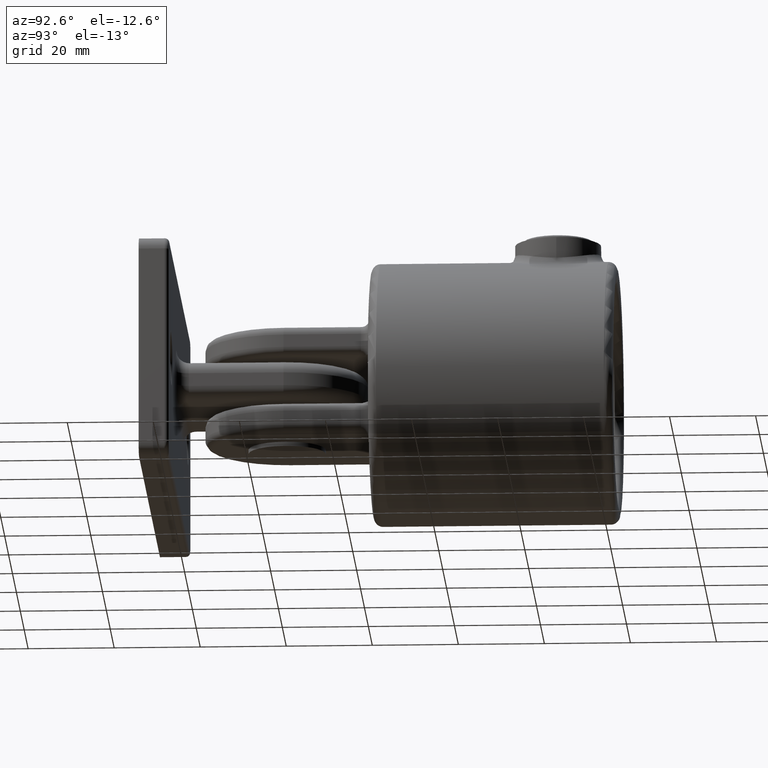
[diagram: clean part render]
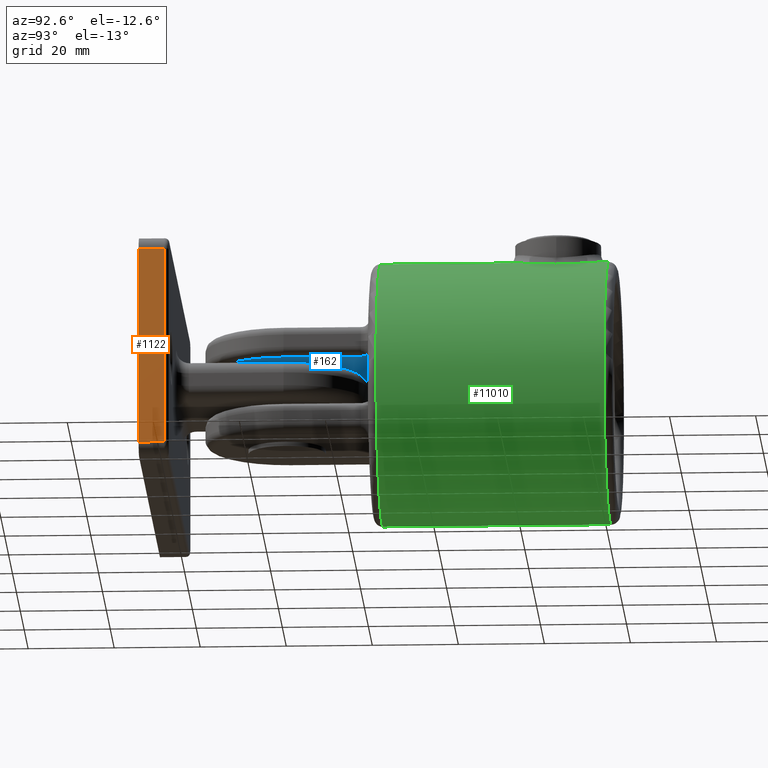
[diagram: same view with three faces highlighted in distinct colors, each labeled with its STEP entity id]
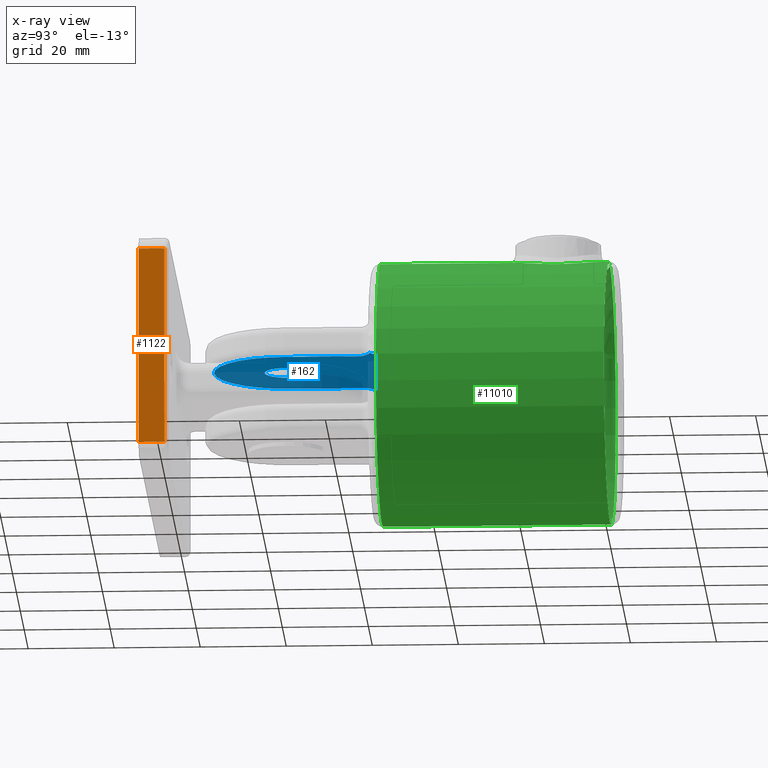
[diagram: x-ray of the same camera — body ghosted, the three highlighted faces saturated]
A machine part, auxiliary view with three faces highlighted in distinct colors.
The next image is the same camera in x-ray (body ghosted, the three faces saturated) — at least one of them is partly hidden behind the body in this view.
Their STEP definitions:

[orange] entity #1122 — the highlighted planar face has unit normal (-1, 0, 0).
#27 = EDGE_LOOP ( 'NONE', ( #12870, #6664, #6963, #1212 ) ) ;
#339 = PLANE ( 'NONE',  #8659 ) ;
#1122 = ADVANCED_FACE ( 'NONE', ( #14199 ), #339, .F. ) ;
#1212 = ORIENTED_EDGE ( 'NONE', *, *, #16760, .T. ) ;
#2662 = EDGE_CURVE ( 'NONE', #8939, #4778, #6262, .T. ) ;
#3141 = CARTESIAN_POINT ( 'NONE',  ( 56.00000000000000000, 7.000000000000000000, -26.00000000000000711 ) ) ;
#4343 = CARTESIAN_POINT ( 'NONE',  ( 56.00000000000000000, 7.000000000000000000, -23.00000000000000711 ) ) ;
#4460 = DIRECTION ( 'NONE',  ( -1.000000000000000000, 0.000000000000000000, 0.000000000000000000 ) ) ;
#4778 = VERTEX_POINT ( 'NONE', #7500 ) ;
#4779 = VERTEX_POINT ( 'NONE', #4813 ) ;
#4813 = CARTESIAN_POINT ( 'NONE',  ( 56.00000000000000000, 6.000000000000000000, 22.99999999999999645 ) ) ;
#6026 = VECTOR ( 'NONE', #9417, 1000.000000000000000 ) ;
#6262 = LINE ( 'NONE', #4343, #10207 ) ;
#6664 = ORIENTED_EDGE ( 'NONE', *, *, #16279, .T. ) ;
#6963 = ORIENTED_EDGE ( 'NONE', *, *, #15968, .T. ) ;
#7475 = CARTESIAN_POINT ( 'NONE',  ( 56.00000000000000000, 0.000000000000000000, -23.00000000000000711 ) ) ;
#7500 = CARTESIAN_POINT ( 'NONE',  ( 56.00000000000000000, 6.000000000000000000, -23.00000000000000711 ) ) ;
#7920 = CARTESIAN_POINT ( 'NONE',  ( 56.00000000000000000, 0.000000000000000000, 22.99999999999999645 ) ) ;
#8630 = CARTESIAN_POINT ( 'NONE',  ( 56.00000000000000000, 7.000000000000000000, 22.99999999999999645 ) ) ;
#8659 = AXIS2_PLACEMENT_3D ( 'NONE', #3141, #4460, #13804 ) ;
#8939 = VERTEX_POINT ( 'NONE', #7475 ) ;
#9364 = CARTESIAN_POINT ( 'NONE',  ( 56.00000000000000000, 0.000000000000000000, -26.00000000000000711 ) ) ;
#9417 = DIRECTION ( 'NONE',  ( -0.000000000000000000, -0.000000000000000000, -1.000000000000000000 ) ) ;
#9437 = DIRECTION ( 'NONE',  ( -0.000000000000000000, -0.000000000000000000, 1.000000000000000000 ) ) ;
#10207 = VECTOR ( 'NONE', #12554, 1000.000000000000000 ) ;
#12282 = LINE ( 'NONE', #9364, #6026 ) ;
#12554 = DIRECTION ( 'NONE',  ( -0.000000000000000000, 1.000000000000000000, -0.000000000000000000 ) ) ;
#12870 = ORIENTED_EDGE ( 'NONE', *, *, #2662, .T. ) ;
#12913 = VECTOR ( 'NONE', #9437, 1000.000000000000000 ) ;
#13136 = LINE ( 'NONE', #8630, #15029 ) ;
#13407 = CARTESIAN_POINT ( 'NONE',  ( 56.00000000000000000, 6.000000000000000000, 22.99999999999999645 ) ) ;
#13413 = VERTEX_POINT ( 'NONE', #7920 ) ;
#13708 = DIRECTION ( 'NONE',  ( 0.000000000000000000, -1.000000000000000000, 0.000000000000000000 ) ) ;
#13804 = DIRECTION ( 'NONE',  ( 0.000000000000000000, 0.000000000000000000, 1.000000000000000000 ) ) ;
#14199 = FACE_OUTER_BOUND ( 'NONE', #27, .T. ) ;
#15029 = VECTOR ( 'NONE', #13708, 1000.000000000000000 ) ;
#15968 = EDGE_CURVE ( 'NONE', #4779, #13413, #13136, .T. ) ;
#16279 = EDGE_CURVE ( 'NONE', #4778, #4779, #16469, .T. ) ;
#16469 = LINE ( 'NONE', #13407, #12913 ) ;
#16760 = EDGE_CURVE ( 'NONE', #13413, #8939, #12282, .T. ) ;

[blue] entity #162 — the highlighted planar face has unit normal (0, 0, 1).
#2 = B_SPLINE_CURVE_WITH_KNOTS ( 'NONE', 3,
 ( #12486, #5850, #15244, #9752, #3172, #321, #1859, #3237, #7318, #1688, #16631, #5792, #276, #3057, #16516, #9691 ),
 .UNSPECIFIED., .F., .F.,
 ( 4, 2, 2, 2, 2, 2, 2, 4 ),
 ( 1.430489624538199204E-17, 0.0003979643618849614504, 0.0007959287237699085894, 0.001193893085654855728, 0.001591857447539802867, 0.002387786171309689339, 0.002785750533194633876, 0.003183714895079577979 ),
 .UNSPECIFIED. ) ;
#154 = EDGE_CURVE ( 'NONE', #16697, #16680, #2, .T. ) ;
#162 = ADVANCED_FACE ( 'NONE', ( #7575, #17158 ), #7148, .F. ) ;
#265 = CARTESIAN_POINT ( 'NONE',  ( 0.000000000000000000, 94.00000000000000000, 5.599999999999999645 ) ) ;
#276 = CARTESIAN_POINT ( 'NONE',  ( -20.54674849257742864, 56.93769527278384857, 5.599999999999998757 ) ) ;
#293 = CARTESIAN_POINT ( 'NONE',  ( 20.54908817093351914, 56.93822551673620325, 5.599999999999997868 ) ) ;
#321 = CARTESIAN_POINT ( 'NONE',  ( -19.21762394503924654, 55.89959223797309562, 5.600000000000000533 ) ) ;
#477 = EDGE_CURVE ( 'NONE', #861, #12625, #12145, .T. ) ;
#512 = CARTESIAN_POINT ( 'NONE',  ( 19.52664425433829720, 56.33568811026322720, 5.600000000000000533 ) ) ;
#605 = VERTEX_POINT ( 'NONE', #13874 ) ;
#659 = CARTESIAN_POINT ( 'NONE',  ( -17.99378401058697108, 58.05437255543493791, 5.599999999999999645 ) ) ;
#722 = CARTESIAN_POINT ( 'NONE',  ( 18.99999999999999289, 0.000000000000000000, 5.599999999999999645 ) ) ;
#777 = CARTESIAN_POINT ( 'NONE',  ( -17.00000000000000000, -0.1090185522391873274, 5.599999999999999645 ) ) ;
#861 = VERTEX_POINT ( 'NONE', #3863 ) ;
#910 = VERTEX_POINT ( 'NONE', #6806 ) ;
#968 = CIRCLE ( 'NONE', #14663, 17.00000000000000000 ) ;
#1152 = VECTOR ( 'NONE', #6172, 1000.000000000000000 ) ;
#1495 = CARTESIAN_POINT ( 'NONE',  ( -28.00000000000000355, 57.00000000000000000, 5.599999999999999645 ) ) ;
#1563 = VECTOR ( 'NONE', #1802, 1000.000000000000000 ) ;
#1637 = CARTESIAN_POINT ( 'NONE',  ( 18.99999999999999289, 54.99999999999998579, 5.599999999999999645 ) ) ;
#1655 = CARTESIAN_POINT ( 'NONE',  ( 20.41962239884235331, 56.90110329454493154, 5.599999999999999645 ) ) ;
#1688 = CARTESIAN_POINT ( 'NONE',  ( -19.81545948109989652, 56.60861282080095691, 5.599999999999999645 ) ) ;
#1703 = ORIENTED_EDGE ( 'NONE', *, *, #3125, .T. ) ;
#1723 = CARTESIAN_POINT ( 'NONE',  ( 17.48820684492263311, 58.51781660322618706, 5.600000000000001421 ) ) ;
#1802 = DIRECTION ( 'NONE',  ( -0.000000000000000000, -1.000000000000000000, -0.000000000000000000 ) ) ;
#1826 = CARTESIAN_POINT ( 'NONE',  ( 19.43953020939277465, 56.23576388924448821, 5.600000000000002309 ) ) ;
#1859 = CARTESIAN_POINT ( 'NONE',  ( -19.28309576635448863, 56.01505237791040059, 5.599999999999999645 ) ) ;
#1916 = DIRECTION ( 'NONE',  ( -0.000000000000000000, 0.000000000000000000, 1.000000000000000000 ) ) ;
#1982 = CARTESIAN_POINT ( 'NONE',  ( -20.46410161513775350, 57.00000000000000000, 5.599999999999999645 ) ) ;
#2036 = CARTESIAN_POINT ( 'NONE',  ( -17.00000000000000000, 59.00000000000000711, 5.599999999999999645 ) ) ;
#2278 = B_SPLINE_CURVE_WITH_KNOTS ( 'NONE', 3,
 ( #4473, #13700, #3034, #5717, #9788, #1723, #11121, #12461, #13818, #14871, #15269, #13868, #16606, #4646, #12572, #13980 ),
 .UNSPECIFIED., .F., .F.,
 ( 4, 2, 2, 2, 2, 2, 2, 4 ),
 ( -0.001895498198699565933, -0.001642552429356626022, -0.001389606660013685893, -0.0008837151213278132255, 0.0001280679560439321098, 0.001139851033415677445, 0.001645742572101552932, 0.002151634110787429069 ),
 .UNSPECIFIED. ) ;
#2428 = EDGE_LOOP ( 'NONE', ( #1703, #13630, #9624, #9670, #11145, #14653, #16421, #10255, #3370, #11453, #11623, #11041, #17427 ) ) ;
#2523 = B_SPLINE_CURVE_WITH_KNOTS ( 'NONE', 3,
 ( #9433, #8614, #7111, #293, #1655, #12400, #12506, #9775, #7223, #512, #1826, #13749, #3196, #12558, #15307, #11109 ),
 .UNSPECIFIED., .F., .F.,
 ( 4, 2, 2, 2, 2, 2, 2, 4 ),
 ( 0.000000000000000000, 0.0003979723885793875430, 0.0007959447771587750860, 0.001193917165738162629, 0.001591889554317550172, 0.001989861942896937498, 0.002387834331476325258, 0.003183779108635076925 ),
 .UNSPECIFIED. ) ;
#2542 = CARTESIAN_POINT ( 'NONE',  ( -28.00000000000000355, 57.00000000000000000, 5.599999999999999645 ) ) ;
#2623 = AXIS2_PLACEMENT_3D ( 'NONE', #8817, #11426, #9928 ) ;
#2723 = CARTESIAN_POINT ( 'NONE',  ( 0.000000000000000000, 77.00000000000000000, 5.599999999999999645 ) ) ;
#2786 = DIRECTION ( 'NONE',  ( 1.000000000000000000, 0.000000000000000000, 0.000000000000000000 ) ) ;
#3034 = CARTESIAN_POINT ( 'NONE',  ( 17.12122408332852075, 58.87877569484069795, 5.599999999999997868 ) ) ;
#3057 = CARTESIAN_POINT ( 'NONE',  ( -20.80945626710283136, 56.98745230046166910, 5.600000000000001421 ) ) ;
#3125 = EDGE_CURVE ( 'NONE', #910, #16697, #16045, .T. ) ;
#3172 = CARTESIAN_POINT ( 'NONE',  ( -19.11033903036944892, 55.65556025568882603, 5.599999999999997868 ) ) ;
#3196 = CARTESIAN_POINT ( 'NONE',  ( 19.21818262463779803, 55.90058302544662183, 5.600000000000000533 ) ) ;
#3237 = CARTESIAN_POINT ( 'NONE',  ( -19.43731545198923172, 56.23307303995034090, 5.600000000000000533 ) ) ;
#3275 = EDGE_CURVE ( 'NONE', #4789, #12625, #2278, .T. ) ;
#3287 = CARTESIAN_POINT ( 'NONE',  ( 20.46410161513775350, 57.00000000000000000, 5.600000000000000533 ) ) ;
#3351 = CARTESIAN_POINT ( 'NONE',  ( -19.13350652259873641, 57.29598519409809398, 5.600000000000001421 ) ) ;
#3370 = ORIENTED_EDGE ( 'NONE', *, *, #3275, .T. ) ;
#3863 = CARTESIAN_POINT ( 'NONE',  ( 21.07681941468182174, 57.00000000000000000, 5.599999999999999645 ) ) ;
#3924 = DIRECTION ( 'NONE',  ( 0.000000000000000000, -0.000000000000000000, -1.000000000000000000 ) ) ;
#4020 = EDGE_CURVE ( 'NONE', #10921, #9762, #15308, .T. ) ;
#4182 = VECTOR ( 'NONE', #5193, 1000.000000000000000 ) ;
#4229 = DIRECTION ( 'NONE',  ( 0.000000000000000000, -0.000000000000000000, -1.000000000000000000 ) ) ;
#4301 = LINE ( 'NONE', #722, #16803 ) ;
#4326 = EDGE_CURVE ( 'NONE', #605, #4789, #9145, .T. ) ;
#4355 = VERTEX_POINT ( 'NONE', #265 ) ;
#4473 = CARTESIAN_POINT ( 'NONE',  ( 17.00000000000000000, 59.00000000000000711, 5.599999999999999645 ) ) ;
#4528 = VERTEX_POINT ( 'NONE', #15066 ) ;
#4646 = CARTESIAN_POINT ( 'NONE',  ( 20.12401731499684132, 57.01622626889911061, 5.599999999999999645 ) ) ;
#4735 = CARTESIAN_POINT ( 'NONE',  ( -18.82601518630734105, 57.45958408964467878, 5.599999999999999645 ) ) ;
#4789 = VERTEX_POINT ( 'NONE', #15467 ) ;
#5188 = AXIS2_PLACEMENT_3D ( 'NONE', #11404, #1916, #6068 ) ;
#5193 = DIRECTION ( 'NONE',  ( 1.000000000000000000, 0.000000000000000000, 0.000000000000000000 ) ) ;
#5528 = AXIS2_PLACEMENT_3D ( 'NONE', #2723, #3924, #2786 ) ;
#5717 = CARTESIAN_POINT ( 'NONE',  ( 17.24293136363298018, 58.75782106120622927, 5.599999999999997868 ) ) ;
#5792 = CARTESIAN_POINT ( 'NONE',  ( -20.41703065193482303, 56.90020137784230769, 5.600000000000000533 ) ) ;
#5850 = CARTESIAN_POINT ( 'NONE',  ( -19.00000000000000000, 55.13460156186468453, 5.600000000000000533 ) ) ;
#5875 = VECTOR ( 'NONE', #13043, 1000.000000000000000 ) ;
#5916 = EDGE_LOOP ( 'NONE', ( #14766 ) ) ;
#5985 = EDGE_CURVE ( 'NONE', #4528, #4528, #11788, .T. ) ;
#6068 = DIRECTION ( 'NONE',  ( 1.000000000000000000, 0.000000000000000000, 0.000000000000000000 ) ) ;
#6172 = DIRECTION ( 'NONE',  ( -0.000000000000000000, 1.000000000000000000, -0.000000000000000000 ) ) ;
#6315 = CARTESIAN_POINT ( 'NONE',  ( -21.07681941468183240, 57.00000000000000000, 5.599999999999999645 ) ) ;
#6478 = EDGE_CURVE ( 'NONE', #9762, #15985, #16799, .T. ) ;
#6806 = CARTESIAN_POINT ( 'NONE',  ( -19.00000000000000000, 51.99999999999999289, 5.599999999999999645 ) ) ;
#7111 = CARTESIAN_POINT ( 'NONE',  ( 20.80984523763214966, 56.98743794805503171, 5.599999999999997868 ) ) ;
#7148 = PLANE ( 'NONE',  #5188 ) ;
#7223 = CARTESIAN_POINT ( 'NONE',  ( 19.72032580368858135, 56.51855034955709556, 5.600000000000001421 ) ) ;
#7245 = CARTESIAN_POINT ( 'NONE',  ( -17.00000000000000000, 77.00000000000000000, 5.599999999999999645 ) ) ;
#7318 = CARTESIAN_POINT ( 'NONE',  ( -19.52600631132842679, 56.33496331798492207, 5.600000000000000533 ) ) ;
#7369 = VECTOR ( 'NONE', #11073, 1000.000000000000000 ) ;
#7548 = DIRECTION ( 'NONE',  ( -0.000000000000000000, 1.000000000000000000, -0.000000000000000000 ) ) ;
#7575 = FACE_BOUND ( 'NONE', #5916, .T. ) ;
#7730 = LINE ( 'NONE', #17073, #4182 ) ;
#8024 = EDGE_CURVE ( 'NONE', #13639, #11585, #4301, .T. ) ;
#8373 = CARTESIAN_POINT ( 'NONE',  ( 17.00000000000000000, -0.1090185522391873274, 5.599999999999999645 ) ) ;
#8614 = CARTESIAN_POINT ( 'NONE',  ( 20.94226685746999905, 57.00000000000002132, 5.599999999999998757 ) ) ;
#8817 = CARTESIAN_POINT ( 'NONE',  ( 0.000000000000000000, 77.00000000000000000, 5.599999999999996980 ) ) ;
#9145 = LINE ( 'NONE', #8373, #1563 ) ;
#9425 = DIRECTION ( 'NONE',  ( 1.000000000000000000, 0.000000000000000000, 0.000000000000000000 ) ) ;
#9433 = CARTESIAN_POINT ( 'NONE',  ( 21.07681941468182174, 57.00000000000000000, 5.599999999999999645 ) ) ;
#9450 = EDGE_CURVE ( 'NONE', #861, #11585, #2523, .T. ) ;
#9624 = ORIENTED_EDGE ( 'NONE', *, *, #13554, .F. ) ;
#9652 = CIRCLE ( 'NONE', #5528, 17.00000000000000000 ) ;
#9670 = ORIENTED_EDGE ( 'NONE', *, *, #4020, .T. ) ;
#9691 = CARTESIAN_POINT ( 'NONE',  ( -21.07681941468183240, 57.00000000000000000, 5.599999999999999645 ) ) ;
#9752 = CARTESIAN_POINT ( 'NONE',  ( -19.06881825261049457, 55.52657303774115150, 5.600000000000000533 ) ) ;
#9762 = VERTEX_POINT ( 'NONE', #10440 ) ;
#9775 = CARTESIAN_POINT ( 'NONE',  ( 19.82755481544912968, 56.60154175138961108, 5.600000000000002309 ) ) ;
#9788 = CARTESIAN_POINT ( 'NONE',  ( 17.30397107893062625, 58.69753420799609955, 5.599999999999999645 ) ) ;
#9928 = DIRECTION ( 'NONE',  ( 1.000000000000000000, 0.000000000000000000, 0.000000000000000000 ) ) ;
#10074 = CARTESIAN_POINT ( 'NONE',  ( -17.24108211542406721, 58.75891848727051325, 5.600000000000000533 ) ) ;
#10238 = CARTESIAN_POINT ( 'NONE',  ( -19.00000000000000000, 0.000000000000000000, 5.599999999999999645 ) ) ;
#10255 = ORIENTED_EDGE ( 'NONE', *, *, #4326, .T. ) ;
#10440 = CARTESIAN_POINT ( 'NONE',  ( -17.00000000000000000, 59.00000000000000711, 5.599999999999999645 ) ) ;
#10921 = VERTEX_POINT ( 'NONE', #15961 ) ;
#11041 = ORIENTED_EDGE ( 'NONE', *, *, #8024, .F. ) ;
#11073 = DIRECTION ( 'NONE',  ( -1.000000000000000000, 0.000000000000000000, -0.000000000000000000 ) ) ;
#11109 = CARTESIAN_POINT ( 'NONE',  ( 18.99999999999999289, 54.99999999999998579, 5.599999999999999645 ) ) ;
#11121 = CARTESIAN_POINT ( 'NONE',  ( 17.61265864756018118, 58.39940435769820226, 5.600000000000000533 ) ) ;
#11145 = ORIENTED_EDGE ( 'NONE', *, *, #6478, .T. ) ;
#11404 = CARTESIAN_POINT ( 'NONE',  ( -28.00000000000000355, -0.1090185522391873274, 5.599999999999999645 ) ) ;
#11426 = DIRECTION ( 'NONE',  ( -0.000000000000000000, 0.000000000000000000, 1.000000000000000000 ) ) ;
#11453 = ORIENTED_EDGE ( 'NONE', *, *, #477, .F. ) ;
#11585 = VERTEX_POINT ( 'NONE', #1637 ) ;
#11623 = ORIENTED_EDGE ( 'NONE', *, *, #9450, .T. ) ;
#11788 = CIRCLE ( 'NONE', #2623, 5.250000000000002665 ) ;
#12145 = LINE ( 'NONE', #1495, #7369 ) ;
#12276 = CARTESIAN_POINT ( 'NONE',  ( 0.000000000000000000, 77.00000000000000000, 5.599999999999999645 ) ) ;
#12400 = CARTESIAN_POINT ( 'NONE',  ( 20.17056968778834047, 56.80329858643279550, 5.600000000000001421 ) ) ;
#12461 = CARTESIAN_POINT ( 'NONE',  ( 17.99373396757669497, 58.05441457052042153, 5.599999999999997868 ) ) ;
#12486 = CARTESIAN_POINT ( 'NONE',  ( -19.00000000000000000, 54.99999999999998579, 5.599999999999999645 ) ) ;
#12506 = CARTESIAN_POINT ( 'NONE',  ( 20.05217245886576194, 56.74335694160311760, 5.599999999999998757 ) ) ;
#12558 = CARTESIAN_POINT ( 'NONE',  ( 19.05757665095608999, 55.53610089589614063, 5.600000000000000533 ) ) ;
#12572 = CARTESIAN_POINT ( 'NONE',  ( 20.29365574421570884, 56.99999999999998579, 5.599999999999997868 ) ) ;
#12625 = VERTEX_POINT ( 'NONE', #3287 ) ;
#12643 = EDGE_CURVE ( 'NONE', #4355, #605, #9652, .T. ) ;
#12663 = CARTESIAN_POINT ( 'NONE',  ( -20.29365981914500594, 56.99999999999999289, 5.599999999999998757 ) ) ;
#12718 = CARTESIAN_POINT ( 'NONE',  ( -20.12402542648415960, 57.01622549779422400, 5.599999999999997868 ) ) ;
#12864 = EDGE_CURVE ( 'NONE', #15985, #4355, #968, .T. ) ;
#13043 = DIRECTION ( 'NONE',  ( -1.000000000000000000, 0.000000000000000000, -0.000000000000000000 ) ) ;
#13392 = LINE ( 'NONE', #2542, #5875 ) ;
#13530 = CARTESIAN_POINT ( 'NONE',  ( 18.99999999999999289, 52.00000000000000711, 5.599999999999999645 ) ) ;
#13554 = EDGE_CURVE ( 'NONE', #10921, #16680, #13392, .T. ) ;
#13630 = ORIENTED_EDGE ( 'NONE', *, *, #154, .T. ) ;
#13639 = VERTEX_POINT ( 'NONE', #13530 ) ;
#13700 = CARTESIAN_POINT ( 'NONE',  ( 17.05961996411519976, 58.94038018493206721, 5.600000000000000533 ) ) ;
#13749 = CARTESIAN_POINT ( 'NONE',  ( 19.28523767862437310, 56.01850828886723832, 5.599999999999999645 ) ) ;
#13818 = CARTESIAN_POINT ( 'NONE',  ( 18.25790355034152412, 57.83816066791810329, 5.599999999999999645 ) ) ;
#13868 = CARTESIAN_POINT ( 'NONE',  ( 19.61864178569005901, 57.12388182792435032, 5.599999999999999645 ) ) ;
#13874 = CARTESIAN_POINT ( 'NONE',  ( 17.00000000000000000, 77.00000000000000000, 5.599999999999999645 ) ) ;
#13980 = CARTESIAN_POINT ( 'NONE',  ( 20.46410161513775350, 57.00000000000000000, 5.600000000000000533 ) ) ;
#14056 = CARTESIAN_POINT ( 'NONE',  ( -17.48569282474491260, 58.51434399494456073, 5.600000000000001421 ) ) ;
#14115 = CARTESIAN_POINT ( 'NONE',  ( -19.61866153950726144, 57.12387610452081788, 5.600000000000000533 ) ) ;
#14467 = CARTESIAN_POINT ( 'NONE',  ( -19.00000000000000000, 54.99999999999998579, 5.599999999999999645 ) ) ;
#14653 = ORIENTED_EDGE ( 'NONE', *, *, #12864, .T. ) ;
#14663 = AXIS2_PLACEMENT_3D ( 'NONE', #12276, #4229, #9425 ) ;
#14766 = ORIENTED_EDGE ( 'NONE', *, *, #5985, .T. ) ;
#14871 = CARTESIAN_POINT ( 'NONE',  ( 18.82597932609762381, 57.45960412618817514, 5.600000000000001421 ) ) ;
#14951 = VECTOR ( 'NONE', #7548, 1000.000000000000000 ) ;
#15010 = EDGE_CURVE ( 'NONE', #910, #13639, #7730, .T. ) ;
#15066 = CARTESIAN_POINT ( 'NONE',  ( 5.250000000000002665, 77.00000000000000000, 5.599999999999996980 ) ) ;
#15244 = CARTESIAN_POINT ( 'NONE',  ( -19.01402225985161820, 55.26679201424543919, 5.599999999999999645 ) ) ;
#15269 = CARTESIAN_POINT ( 'NONE',  ( 19.13347643569041878, 57.29599843628118094, 5.599999999999999645 ) ) ;
#15307 = CARTESIAN_POINT ( 'NONE',  ( 18.99999999999999645, 55.26940008575682839, 5.600000000000001421 ) ) ;
#15308 = B_SPLINE_CURVE_WITH_KNOTS ( 'NONE', 3,
 ( #1982, #12663, #12718, #16688, #14115, #3351, #4735, #16791, #659, #14056, #10074, #2036 ),
 .UNSPECIFIED., .F., .F.,
 ( 4, 2, 2, 2, 2, 4 ),
 ( -0.001516869133423584580, -0.001005457376759847895, -0.0004940456200961112088, 0.0005287778932313695352, 0.001551601406558849846, 0.002574424919886330806 ),
 .UNSPECIFIED. ) ;
#15467 = CARTESIAN_POINT ( 'NONE',  ( 17.00000000000000000, 59.00000000000000711, 5.599999999999999645 ) ) ;
#15563 = DIRECTION ( 'NONE',  ( -0.000000000000000000, 1.000000000000000000, -0.000000000000000000 ) ) ;
#15961 = CARTESIAN_POINT ( 'NONE',  ( -20.46410161513775350, 57.00000000000000000, 5.599999999999999645 ) ) ;
#15985 = VERTEX_POINT ( 'NONE', #7245 ) ;
#16045 = LINE ( 'NONE', #10238, #1152 ) ;
#16421 = ORIENTED_EDGE ( 'NONE', *, *, #12643, .T. ) ;
#16516 = CARTESIAN_POINT ( 'NONE',  ( -20.94235290032451147, 57.00000000000001421, 5.599999999999998757 ) ) ;
#16606 = CARTESIAN_POINT ( 'NONE',  ( 19.78620315589397549, 57.07807306839222861, 5.600000000000000533 ) ) ;
#16631 = CARTESIAN_POINT ( 'NONE',  ( -20.04637615641578563, 56.75429288519446658, 5.599999999999998757 ) ) ;
#16680 = VERTEX_POINT ( 'NONE', #6315 ) ;
#16688 = CARTESIAN_POINT ( 'NONE',  ( -19.78621927325326624, 57.07806940374665317, 5.599999999999997868 ) ) ;
#16697 = VERTEX_POINT ( 'NONE', #14467 ) ;
#16791 = CARTESIAN_POINT ( 'NONE',  ( -18.25794917792759975, 57.83812640286144813, 5.600000000000001421 ) ) ;
#16799 = LINE ( 'NONE', #777, #14951 ) ;
#16803 = VECTOR ( 'NONE', #15563, 1000.000000000000000 ) ;
#17073 = CARTESIAN_POINT ( 'NONE',  ( 0.000000000000000000, 52.00000000000000711, 5.599999999999999645 ) ) ;
#17158 = FACE_OUTER_BOUND ( 'NONE', #2428, .T. ) ;
#17427 = ORIENTED_EDGE ( 'NONE', *, *, #15010, .F. ) ;

[green] entity #11010 — the highlighted cylindrical surface (bore or boss wall) has radius 30.5 mm, axis along (0, 1, -0).
#18 = CARTESIAN_POINT ( 'NONE',  ( 6.709174928523371939, 4.354062510185394252, 29.75454535387024890 ) ) ;
#206 = CYLINDRICAL_SURFACE ( 'NONE', #10978, 30.50000000000000000 ) ;
#822 = CARTESIAN_POINT ( 'NONE',  ( -4.793969198511003782, 3.134235218885129459, 30.12290249556444266 ) ) ;
#941 = CARTESIAN_POINT ( 'NONE',  ( -3.026050870594105824, 2.434238432205754865, 30.35170686832319831 ) ) ;
#1058 = CARTESIAN_POINT ( 'NONE',  ( 0.3779548016671946398, 26.00019906655573365, 30.50006897832122377 ) ) ;
#1127 = CARTESIAN_POINT ( 'NONE',  ( -5.136831615458565814, 24.70863583336856806, 30.07234476666326017 ) ) ;
#1187 = CARTESIAN_POINT ( 'NONE',  ( 10.91596221755033191, 17.04969053029669723, 28.48006098479567072 ) ) ;
#1245 = CARTESIAN_POINT ( 'NONE',  ( 7.583850922601537370, 22.90494306336262298, 29.54677012747194098 ) ) ;
#1312 = CARTESIAN_POINT ( 'NONE',  ( 11.17559517623976539, 12.47115895088105297, 28.37882037202824037 ) ) ;
#1370 = CARTESIAN_POINT ( 'NONE',  ( 9.047786223290414043, 6.813758281663136351, 29.13003688552382542 ) ) ;
#1437 = CARTESIAN_POINT ( 'NONE',  ( 1.539353544089429926, 2.105527592974716811, 30.46355052869966684 ) ) ;
#1635 = CIRCLE ( 'NONE', #10873, 30.50000000000000000 ) ;
#2449 = CARTESIAN_POINT ( 'NONE',  ( 1.911303686990869943, 25.83284641643757240, 30.44234406891348854 ) ) ;
#2504 = CARTESIAN_POINT ( 'NONE',  ( -4.105554508060977881, 25.18125088903325803, 30.22441334226353860 ) ) ;
#2571 = CARTESIAN_POINT ( 'NONE',  ( -7.575469181366580429, 22.91288636357369768, 29.54890916789999267 ) ) ;
#2633 = CARTESIAN_POINT ( 'NONE',  ( 9.835318264099530694, 8.104512378909122461, 28.87365579794515114 ) ) ;
#2929 = CARTESIAN_POINT ( 'NONE',  ( 7.832638240668002183, 5.369096782463767425, 29.47829216815113540 ) ) ;
#3054 = EDGE_LOOP ( 'NONE', ( #8925 ) ) ;
#3468 = B_SPLINE_CURVE_WITH_KNOTS ( 'NONE', 3,
 ( #7651, #15498, #11628, #8860, #941, #15562, #13004, #822, #14334, #6346, #15684, #17027, #10367, #11879, #6472, #4011, #13369, #17330, #14505, #10658, #10537, #11927, #15795, #3758, #3958, #17202, #5322, #3821, #11805, #6533, #13302, #7821, #9223, #10714, #6709, #11745, #15846, #2571, #9158, #10474, #1127, #2504, #13183, #17148, #7945, #9342, #7885, #1058, #11999, #14622, #2449, #13130, #3885, #15903, #5206, #8059, #16023, #13240, #1245, #5262, #17390, #14568, #14439, #9280, #5382, #5144, #1187, #14690, #9397, #6589, #17269, #1312, #10594, #6652, #15959, #7996, #2633, #1370, #15001, #2929, #9573, #6944, #18, #13418, #12176, #12305, #9509, #7011, #8304, #5449, #1437, #16088, #4313, #8121 ),
 .UNSPECIFIED., .T., .F.,
 ( 4, 2, 2, 2, 2, 2, 2, 2, 2, 2, 2, 2, 2, 2, 2, 2, 2, 2, 2, 2, 2, 2, 2, 2, 2, 2, 2, 2, 2, 2, 2, 2, 2, 2, 2, 2, 2, 2, 2, 2, 2, 2, 2, 2, 2, 2, 4 ),
 ( 0.05508177351297097873, 0.05737677634430404794, 0.05852427775997058601, 0.05967177917563711714, 0.06081928059130365521, 0.06196678200697018635, 0.06426178483830326249, 0.06540928625396978668, 0.06655678766963632476, 0.06885179050096940090, 0.06999929191663592509, 0.07114679333230246316, 0.07344179616363552543, 0.07573679899496860157, 0.07688430041063512577, 0.07803180182630166384, 0.08032680465763471223, 0.08147430607330125030, 0.08262180748896777449, 0.08491681032030085063, 0.08721181315163391290, 0.08835931456730045097, 0.08950681598296697516, 0.09180181881430005131, 0.09294932022996660326, 0.09409682164563312745, 0.09524432306129966552, 0.09639182447696620359, 0.09868682730829927974, 0.1009818301396323559, 0.1032768329709654320, 0.1044243343866319562, 0.1055718358022984943, 0.1078668386336315566, 0.1101618414649646327, 0.1113093428806311846, 0.1124568442962977088, 0.1147518471276307850, 0.1170468499589638611, 0.1193418527902969373, 0.1204893542059634892, 0.1216368556216300134, 0.1227843570372965654, 0.1239318584529630896, 0.1262268612842961657, 0.1273743626999626899, 0.1285218641156292141 ),
 .UNSPECIFIED. ) ;
#3753 = CARTESIAN_POINT ( 'NONE',  ( 0.000000000000000000, 2.000000000000001776, 30.50000000000000000 ) ) ;
#3758 = CARTESIAN_POINT ( 'NONE',  ( -11.19189644310774057, 12.46404716867328411, 28.37274975076569916 ) ) ;
#3821 = CARTESIAN_POINT ( 'NONE',  ( -10.98595388183936272, 16.66606476255675418, 28.45284212718335581 ) ) ;
#3885 = CARTESIAN_POINT ( 'NONE',  ( 3.022753520854165821, 25.56669538060804214, 30.35202196198193292 ) ) ;
#3958 = CARTESIAN_POINT ( 'NONE',  ( -11.26164302735372402, 13.22688354344389161, 28.34475959215642504 ) ) ;
#4011 = CARTESIAN_POINT ( 'NONE',  ( -9.038308271229983148, 6.830894774893219612, 29.13100779426872933 ) ) ;
#4313 = CARTESIAN_POINT ( 'NONE',  ( 0.3835433789889051703, 2.000000000000000000, 30.50000000000001421 ) ) ;
#4707 = DIRECTION ( 'NONE',  ( 0.000000000000000000, 0.000000000000000000, -1.000000000000000000 ) ) ;
#5144 = CARTESIAN_POINT ( 'NONE',  ( 10.71134363683181867, 17.78295590648747293, 28.55868925382991108 ) ) ;
#5206 = CARTESIAN_POINT ( 'NONE',  ( 4.103338681587352710, 25.18237166942944327, 30.22476929305996407 ) ) ;
#5262 = CARTESIAN_POINT ( 'NONE',  ( 8.597692037372523188, 21.78912140499706140, 29.26783407449913810 ) ) ;
#5322 = CARTESIAN_POINT ( 'NONE',  ( -11.19156694264660423, 15.53930802058689586, 28.37288248665516122 ) ) ;
#5382 = CARTESIAN_POINT ( 'NONE',  ( 10.30872114149041252, 18.84585204430269201, 28.70541189441056318 ) ) ;
#5449 = CARTESIAN_POINT ( 'NONE',  ( 1.916957069334767283, 2.168212632071718104, 30.44198141418739212 ) ) ;
#6346 = CARTESIAN_POINT ( 'NONE',  ( -5.784727487260371781, 3.696432726108592526, 29.94824971151397719 ) ) ;
#6472 = CARTESIAN_POINT ( 'NONE',  ( -8.582650906545444158, 6.221008199024064211, 29.26849389585848726 ) ) ;
#6525 = DIRECTION ( 'NONE',  ( 0.000000000000000000, 0.000000000000000000, 1.000000000000000000 ) ) ;
#6533 = CARTESIAN_POINT ( 'NONE',  ( -10.69491807873161093, 17.77819658065725505, 28.56362733634326645 ) ) ;
#6589 = CARTESIAN_POINT ( 'NONE',  ( 11.26157573034706871, 13.61910751566457378, 28.34478632961046074 ) ) ;
#6652 = CARTESIAN_POINT ( 'NONE',  ( 10.91622459963182834, 10.95225648255365236, 28.47995743206093877 ) ) ;
#6709 = CARTESIAN_POINT ( 'NONE',  ( -9.029439536706494351, 21.18168904846161027, 29.13375196157485902 ) ) ;
#6944 = CARTESIAN_POINT ( 'NONE',  ( 7.000826883907530274, 4.592370185224558199, 29.68706601083023955 ) ) ;
#7011 = CARTESIAN_POINT ( 'NONE',  ( 3.752167550747611990, 2.656804377797769234, 30.27652092646351889 ) ) ;
#7346 = CARTESIAN_POINT ( 'NONE',  ( 0.000000000000000000, 55.00000000000000000, 0.000000000000000000 ) ) ;
#7517 = DIRECTION ( 'NONE',  ( -0.000000000000000000, -1.000000000000000000, -0.000000000000000000 ) ) ;
#7651 = CARTESIAN_POINT ( 'NONE',  ( 2.602085213965210642E-15, 1.999999999999999112, 30.50000000000001066 ) ) ;
#7821 = CARTESIAN_POINT ( 'NONE',  ( -10.16881974270378564, 19.21345025795039518, 28.75635633840665051 ) ) ;
#7885 = CARTESIAN_POINT ( 'NONE',  ( -0.7724875422416171977, 25.99959753282133335, 30.49986054156487114 ) ) ;
#7929 = EDGE_LOOP ( 'NONE', ( #16502, #8017 ) ) ;
#7945 = CARTESIAN_POINT ( 'NONE',  ( -2.652514550686046135, 25.66948666633390630, 30.38675607796334077 ) ) ;
#7996 = CARTESIAN_POINT ( 'NONE',  ( 10.17373442398052141, 8.797776059434022855, 28.75460375490737874 ) ) ;
#8017 = ORIENTED_EDGE ( 'NONE', *, *, #15887, .T. ) ;
#8020 = FACE_OUTER_BOUND ( 'NONE', #3054, .T. ) ;
#8059 = CARTESIAN_POINT ( 'NONE',  ( 5.148716937592578091, 24.70297726480269773, 30.07053345909572073 ) ) ;
#8121 = CARTESIAN_POINT ( 'NONE',  ( 2.602085213965210642E-15, 1.999999999999999112, 30.50000000000001066 ) ) ;
#8253 = FACE_OUTER_BOUND ( 'NONE', #7929, .T. ) ;
#8304 = CARTESIAN_POINT ( 'NONE',  ( 3.032111555076096643, 2.414852983618911431, 30.35806526818182505 ) ) ;
#8369 = CARTESIAN_POINT ( 'NONE',  ( 0.000000000000000000, 55.00000000000000000, 30.50000000000000000 ) ) ;
#8860 = CARTESIAN_POINT ( 'NONE',  ( -2.651890083292775646, 2.330308292377219370, 30.38682503580911387 ) ) ;
#8925 = ORIENTED_EDGE ( 'NONE', *, *, #15274, .T. ) ;
#8958 = VERTEX_POINT ( 'NONE', #3753 ) ;
#9158 = CARTESIAN_POINT ( 'NONE',  ( -7.016690753439647210, 23.41972362816971653, 29.68857074842921762 ) ) ;
#9223 = CARTESIAN_POINT ( 'NONE',  ( -9.836646768329295298, 19.89331587946755775, 28.87322367265354117 ) ) ;
#9280 = CARTESIAN_POINT ( 'NONE',  ( 10.15844592240404154, 19.19394158782059989, 28.75912269721082026 ) ) ;
#9342 = CARTESIAN_POINT ( 'NONE',  ( -1.530046113451942746, 25.91657769210475237, 30.47083970657327612 ) ) ;
#9397 = CARTESIAN_POINT ( 'NONE',  ( 11.26146374089256241, 14.76553226120286944, 28.34483082360902984 ) ) ;
#9509 = CARTESIAN_POINT ( 'NONE',  ( 4.797782251844703083, 3.135981212319555844, 30.12234064027479619 ) ) ;
#9573 = CARTESIAN_POINT ( 'NONE',  ( 7.561927170432110934, 5.099125343656072396, 29.54912389325470201 ) ) ;
#10155 = DIRECTION ( 'NONE',  ( 0.000000000000000000, 0.000000000000000000, 1.000000000000000000 ) ) ;
#10367 = CARTESIAN_POINT ( 'NONE',  ( -7.578928348704138784, 5.090222142221669799, 29.54804856496077292 ) ) ;
#10474 = CARTESIAN_POINT ( 'NONE',  ( -5.787429719565320596, 24.32485783493158493, 29.95247634929346603 ) ) ;
#10537 = CARTESIAN_POINT ( 'NONE',  ( -10.69733952115616837, 10.22970686415381003, 28.56271853165841179 ) ) ;
#10594 = CARTESIAN_POINT ( 'NONE',  ( 11.12327624716591146, 12.08624208431839264, 28.39944029799948311 ) ) ;
#10658 = CARTESIAN_POINT ( 'NONE',  ( -10.57712353359535662, 9.862416789068818801, 28.60760787048303300 ) ) ;
#10714 = CARTESIAN_POINT ( 'NONE',  ( -9.243968215091070917, 20.86469932400803273, 29.06616964552393512 ) ) ;
#10873 = AXIS2_PLACEMENT_3D ( 'NONE', #11921, #13118, #6525 ) ;
#10978 = AXIS2_PLACEMENT_3D ( 'NONE', #14196, #7517, #4707 ) ;
#11010 = ADVANCED_FACE ( 'NONE', ( #8253, #8020 ), #206, .T. ) ;
#11440 = DIRECTION ( 'NONE',  ( -0.000000000000000000, -1.000000000000000000, -0.000000000000000000 ) ) ;
#11628 = CARTESIAN_POINT ( 'NONE',  ( -1.525920301081234776, 2.082649722593079566, 30.47110425169588410 ) ) ;
#11745 = CARTESIAN_POINT ( 'NONE',  ( -8.575153246178027544, 21.78828782283658683, 29.27068548070181819 ) ) ;
#11805 = CARTESIAN_POINT ( 'NONE',  ( -10.90049424619726892, 17.03874118948970207, 28.48580882665784131 ) ) ;
#11879 = CARTESIAN_POINT ( 'NONE',  ( -8.340587580369865250, 5.927624465590060510, 29.33860819879154036 ) ) ;
#11921 = CARTESIAN_POINT ( 'NONE',  ( 0.000000000000000000, 2.000000000000001776, 0.000000000000000000 ) ) ;
#11927 = CARTESIAN_POINT ( 'NONE',  ( -10.90191611693848550, 10.96719500286787152, 28.48526264103720251 ) ) ;
#11999 = CARTESIAN_POINT ( 'NONE',  ( 0.7665150563471229139, 25.97921660147965994, 30.49278177436089976 ) ) ;
#12176 = CARTESIAN_POINT ( 'NONE',  ( 5.789137863697383146, 3.699306629790069856, 29.94738181258726328 ) ) ;
#12305 = CARTESIAN_POINT ( 'NONE',  ( 5.137150114715231197, 3.313887927378466713, 30.06608526783390900 ) ) ;
#12449 = AXIS2_PLACEMENT_3D ( 'NONE', #7346, #11440, #10155 ) ;
#13004 = CARTESIAN_POINT ( 'NONE',  ( -4.104586597752455823, 2.818307035435442920, 30.22455565091248531 ) ) ;
#13118 = DIRECTION ( 'NONE',  ( 0.000000000000000000, 1.000000000000000000, 0.000000000000000000 ) ) ;
#13130 = CARTESIAN_POINT ( 'NONE',  ( 2.655918393980798431, 25.66853894248059476, 30.38643598184115291 ) ) ;
#13183 = CARTESIAN_POINT ( 'NONE',  ( -3.752499628723237723, 25.32148046753421866, 30.27048232448349552 ) ) ;
#13240 = CARTESIAN_POINT ( 'NONE',  ( 7.014706454418974779, 23.42069088215449923, 29.68889485625990332 ) ) ;
#13302 = CARTESIAN_POINT ( 'NONE',  ( -10.57467990496025045, 18.14458803361594974, 28.60851055390485698 ) ) ;
#13369 = CARTESIAN_POINT ( 'NONE',  ( -9.250034192547650136, 7.144689301434995699, 29.06423092442860323 ) ) ;
#13418 = CARTESIAN_POINT ( 'NONE',  ( 6.103329090571001814, 3.907532018382332328, 29.88470129429500943 ) ) ;
#13669 = EDGE_CURVE ( 'NONE', #8958, #8958, #1635, .T. ) ;
#14196 = CARTESIAN_POINT ( 'NONE',  ( 0.000000000000000000, 57.00000000000000000, 0.000000000000000000 ) ) ;
#14334 = CARTESIAN_POINT ( 'NONE',  ( -5.129936803753788688, 3.309895335209847467, 30.06733246023922490 ) ) ;
#14439 = CARTESIAN_POINT ( 'NONE',  ( 9.824873629828848820, 19.87756647631716689, 28.87478173128809544 ) ) ;
#14505 = CARTESIAN_POINT ( 'NONE',  ( -10.17089269066772061, 8.790884801295861806, 28.75562593893512897 ) ) ;
#14568 = CARTESIAN_POINT ( 'NONE',  ( 9.640652589369524961, 20.21436552386408536, 28.93701770666518769 ) ) ;
#14622 = CARTESIAN_POINT ( 'NONE',  ( 1.533525545813601010, 25.89531524451415478, 30.46384061589640524 ) ) ;
#14690 = CARTESIAN_POINT ( 'NONE',  ( 11.19309773100324890, 15.53084689019142672, 28.37228697191814675 ) ) ;
#15001 = CARTESIAN_POINT ( 'NONE',  ( 8.597572585164817482, 6.210296449746828706, 29.26792560949628452 ) ) ;
#15195 = VERTEX_POINT ( 'NONE', #8369 ) ;
#15274 = EDGE_CURVE ( 'NONE', #15195, #15195, #15629, .T. ) ;
#15498 = CARTESIAN_POINT ( 'NONE',  ( -0.7670867579778080092, 1.999999999999997780, 30.50000000000000355 ) ) ;
#15562 = CARTESIAN_POINT ( 'NONE',  ( -3.751173834487395276, 2.678035195108902311, 30.27064235452393248 ) ) ;
#15629 = CIRCLE ( 'NONE', #12449, 30.50000000000000000 ) ;
#15684 = CARTESIAN_POINT ( 'NONE',  ( -6.104969772059341437, 3.908523561735487650, 29.88439370386730332 ) ) ;
#15795 = CARTESIAN_POINT ( 'NONE',  ( -10.98703238002727112, 11.33907765140010504, 28.45242499477747700 ) ) ;
#15846 = CARTESIAN_POINT ( 'NONE',  ( -8.335014200805497708, 22.07884549993266887, 29.34018540934992814 ) ) ;
#15887 = EDGE_CURVE ( 'NONE', #8958, #8958, #3468, .T. ) ;
#15903 = CARTESIAN_POINT ( 'NONE',  ( 3.745657391826910931, 25.32399219730243445, 30.27131194268796932 ) ) ;
#15959 = CARTESIAN_POINT ( 'NONE',  ( 10.71218913228284997, 10.21929224433167782, 28.55838078788118750 ) ) ;
#16023 = CARTESIAN_POINT ( 'NONE',  ( 5.798932846790118667, 24.31687779012050399, 29.95010788404845670 ) ) ;
#16088 = CARTESIAN_POINT ( 'NONE',  ( 0.7717380229071191255, 2.021152333197082651, 30.49265387880066314 ) ) ;
#16502 = ORIENTED_EDGE ( 'NONE', *, *, #13669, .T. ) ;
#17027 = CARTESIAN_POINT ( 'NONE',  ( -7.021466357183432372, 4.584672624921909190, 29.68736401327928220 ) ) ;
#17148 = CARTESIAN_POINT ( 'NONE',  ( -3.026671543139973330, 25.56559137170437168, 30.35164926310238087 ) ) ;
#17202 = CARTESIAN_POINT ( 'NONE',  ( -11.26143366233199394, 14.77657150884969717, 28.34484277397891105 ) ) ;
#17269 = CARTESIAN_POINT ( 'NONE',  ( 11.24452243029274889, 13.23666317326327402, 28.35158000122184419 ) ) ;
#17330 = CARTESIAN_POINT ( 'NONE',  ( -9.839138301364323880, 8.111895203841811508, 28.87233909218083738 ) ) ;
#17390 = CARTESIAN_POINT ( 'NONE',  ( 9.047916496254593710, 21.18637905156921875, 29.13001736175059619 ) ) ;